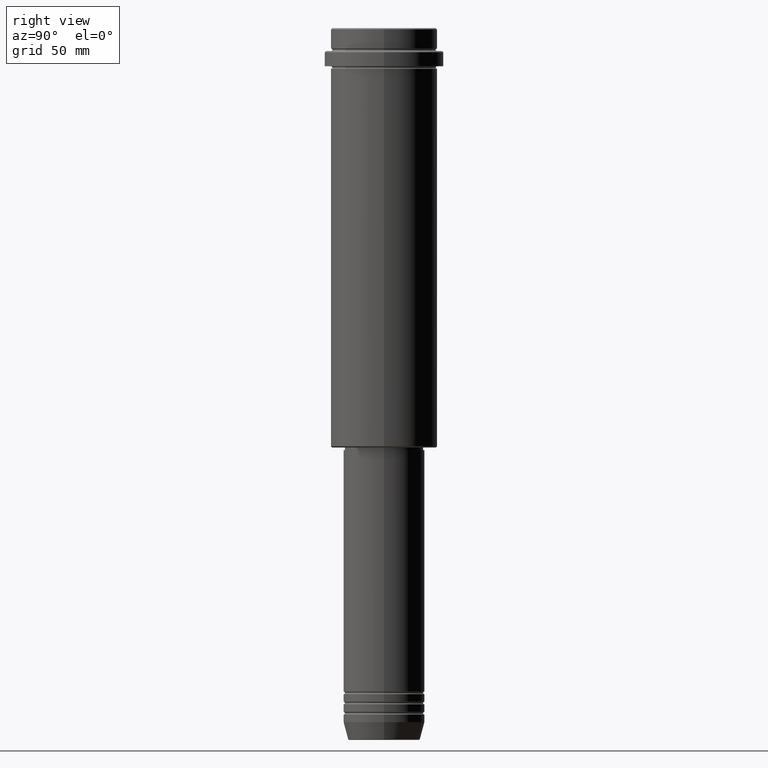
[diagram: clean part render]
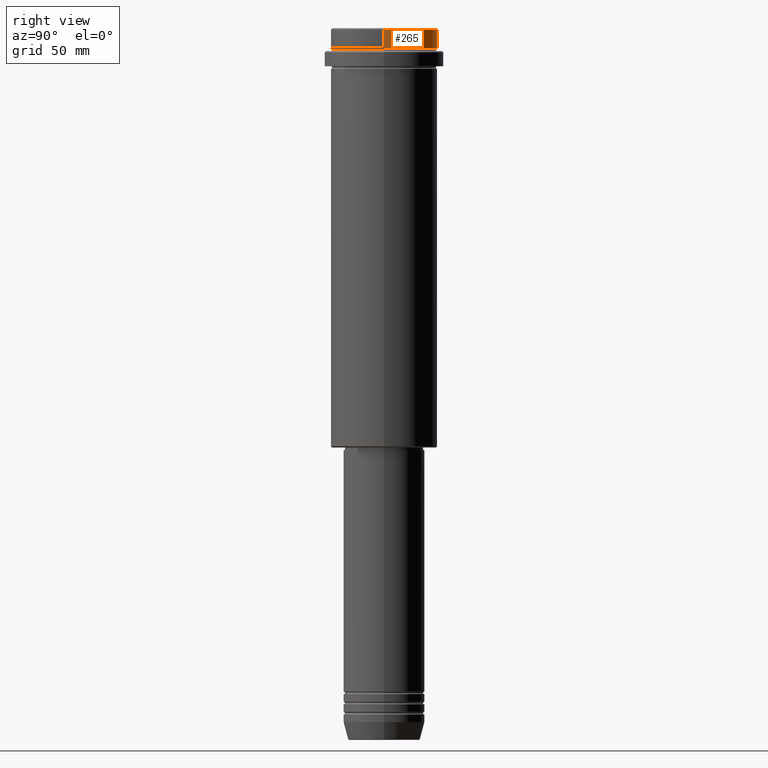
[diagram: same view with one face highlighted and labeled with its STEP entity id]
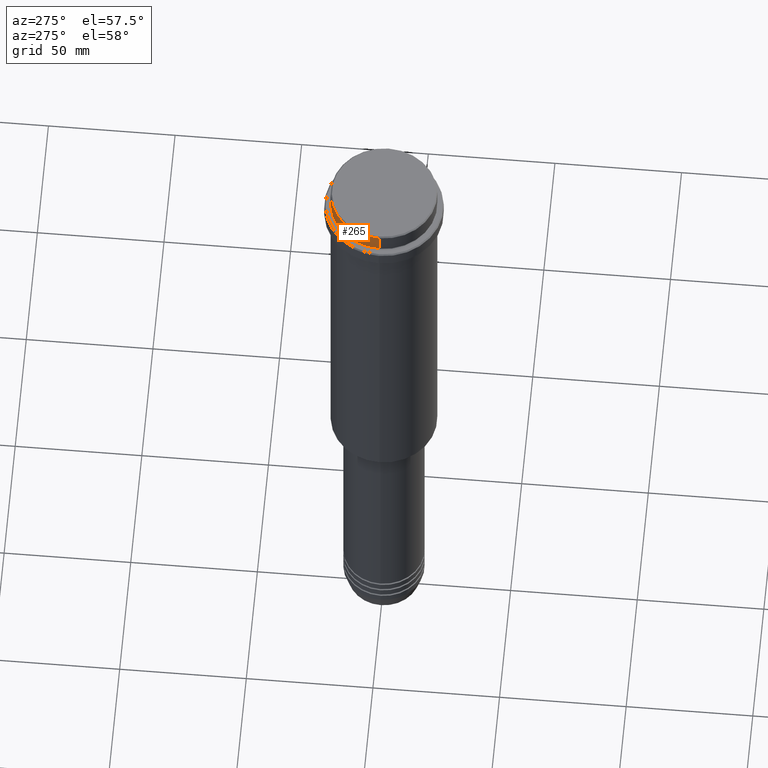
[diagram: same view with one face highlighted and labeled with its STEP entity id]
A machine part, right view. The second image highlights one B-rep face of the part: STEP entity #265.
A second angle (auxiliary view) of the same face is appended — the face is thin or edge-on in the first view.
In plain terms, the highlighted cylindrical surface (partial cylindrical patch) has radius 21 mm, axis along (-0, -0, 1).
Its self-contained STEP definition (entity closure, byte-faithful):
#7 = EDGE_CURVE ( 'NONE', #1022, #35, #1085, .T. ) ;
#35 = VERTEX_POINT ( 'NONE', #604 ) ;
#117 = CYLINDRICAL_SURFACE ( 'NONE', #601, 21.00000000000000000 ) ;
#223 = AXIS2_PLACEMENT_3D ( 'NONE', #1305, #226, #656 ) ;
#226 = DIRECTION ( 'NONE',  ( 0.000000000000000000, 0.000000000000000000, -1.000000000000000000 ) ) ;
#233 = ORIENTED_EDGE ( 'NONE', *, *, #476, .T. ) ;
#253 = DIRECTION ( 'NONE',  ( -0.000000000000000000, -0.000000000000000000, 1.000000000000000000 ) ) ;
#265 = ADVANCED_FACE ( 'NONE', ( #1079 ), #117, .T. ) ;
#328 = CARTESIAN_POINT ( 'NONE',  ( 0.000000000000000000, 0.000000000000000000, -7.999999999999998224 ) ) ;
#388 = LINE ( 'NONE', #1368, #1144 ) ;
#402 = EDGE_CURVE ( 'NONE', #934, #1416, #388, .T. ) ;
#476 = EDGE_CURVE ( 'NONE', #1022, #934, #671, .T. ) ;
#490 = CARTESIAN_POINT ( 'NONE',  ( 21.00000000000000000, 0.000000000000000000, -7.999999999999998224 ) ) ;
#546 = CARTESIAN_POINT ( 'NONE',  ( 0.000000000000000000, 0.000000000000000000, 0.000000000000000000 ) ) ;
#565 = DIRECTION ( 'NONE',  ( 1.000000000000000000, 0.000000000000000000, 0.000000000000000000 ) ) ;
#601 = AXIS2_PLACEMENT_3D ( 'NONE', #546, #681, #1174 ) ;
#604 = CARTESIAN_POINT ( 'NONE',  ( 21.00000000000000000, 0.000000000000000000, -0.4999999999999831246 ) ) ;
#605 = ORIENTED_EDGE ( 'NONE', *, *, #402, .T. ) ;
#656 = DIRECTION ( 'NONE',  ( 1.000000000000000000, 0.000000000000000000, 0.000000000000000000 ) ) ;
#668 = VECTOR ( 'NONE', #1415, 1000.000000000000000 ) ;
#671 = CIRCLE ( 'NONE', #1095, 21.00000000000000000 ) ;
#681 = DIRECTION ( 'NONE',  ( -0.000000000000000000, -0.000000000000000000, 1.000000000000000000 ) ) ;
#706 = DIRECTION ( 'NONE',  ( -0.000000000000000000, -0.000000000000000000, 1.000000000000000000 ) ) ;
#822 = ORIENTED_EDGE ( 'NONE', *, *, #930, .T. ) ;
#832 = CIRCLE ( 'NONE', #223, 21.00000000000000000 ) ;
#930 = EDGE_CURVE ( 'NONE', #1416, #35, #832, .T. ) ;
#934 = VERTEX_POINT ( 'NONE', #1107 ) ;
#987 = CARTESIAN_POINT ( 'NONE',  ( -21.00000000000000000, 2.571758278209441661E-15, -0.4999999999999831246 ) ) ;
#1022 = VERTEX_POINT ( 'NONE', #490 ) ;
#1079 = FACE_OUTER_BOUND ( 'NONE', #1140, .T. ) ;
#1085 = LINE ( 'NONE', #1207, #668 ) ;
#1095 = AXIS2_PLACEMENT_3D ( 'NONE', #328, #253, #565 ) ;
#1107 = CARTESIAN_POINT ( 'NONE',  ( -21.00000000000000000, 2.571758278209441661E-15, -7.999999999999998224 ) ) ;
#1108 = ORIENTED_EDGE ( 'NONE', *, *, #7, .F. ) ;
#1140 = EDGE_LOOP ( 'NONE', ( #233, #605, #822, #1108 ) ) ;
#1144 = VECTOR ( 'NONE', #706, 1000.000000000000000 ) ;
#1174 = DIRECTION ( 'NONE',  ( 1.000000000000000000, 0.000000000000000000, 0.000000000000000000 ) ) ;
#1207 = CARTESIAN_POINT ( 'NONE',  ( 21.00000000000000000, 0.000000000000000000, 0.000000000000000000 ) ) ;
#1305 = CARTESIAN_POINT ( 'NONE',  ( 0.000000000000000000, 0.000000000000000000, -0.4999999999999831246 ) ) ;
#1368 = CARTESIAN_POINT ( 'NONE',  ( -21.00000000000000000, 2.571758278209441661E-15, 0.000000000000000000 ) ) ;
#1415 = DIRECTION ( 'NONE',  ( -0.000000000000000000, -0.000000000000000000, 1.000000000000000000 ) ) ;
#1416 = VERTEX_POINT ( 'NONE', #987 ) ;